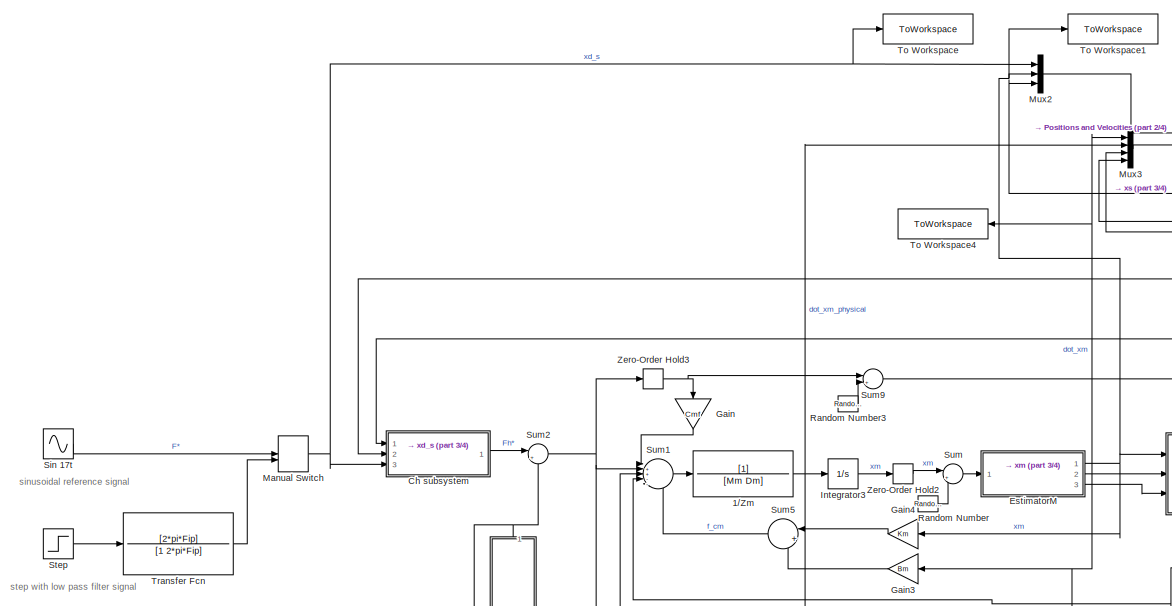
[diagram: root canvas - part 1/4, middle left region]
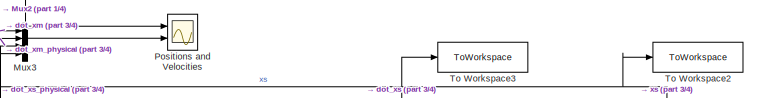
[diagram: root canvas - part 2/4, top center region]
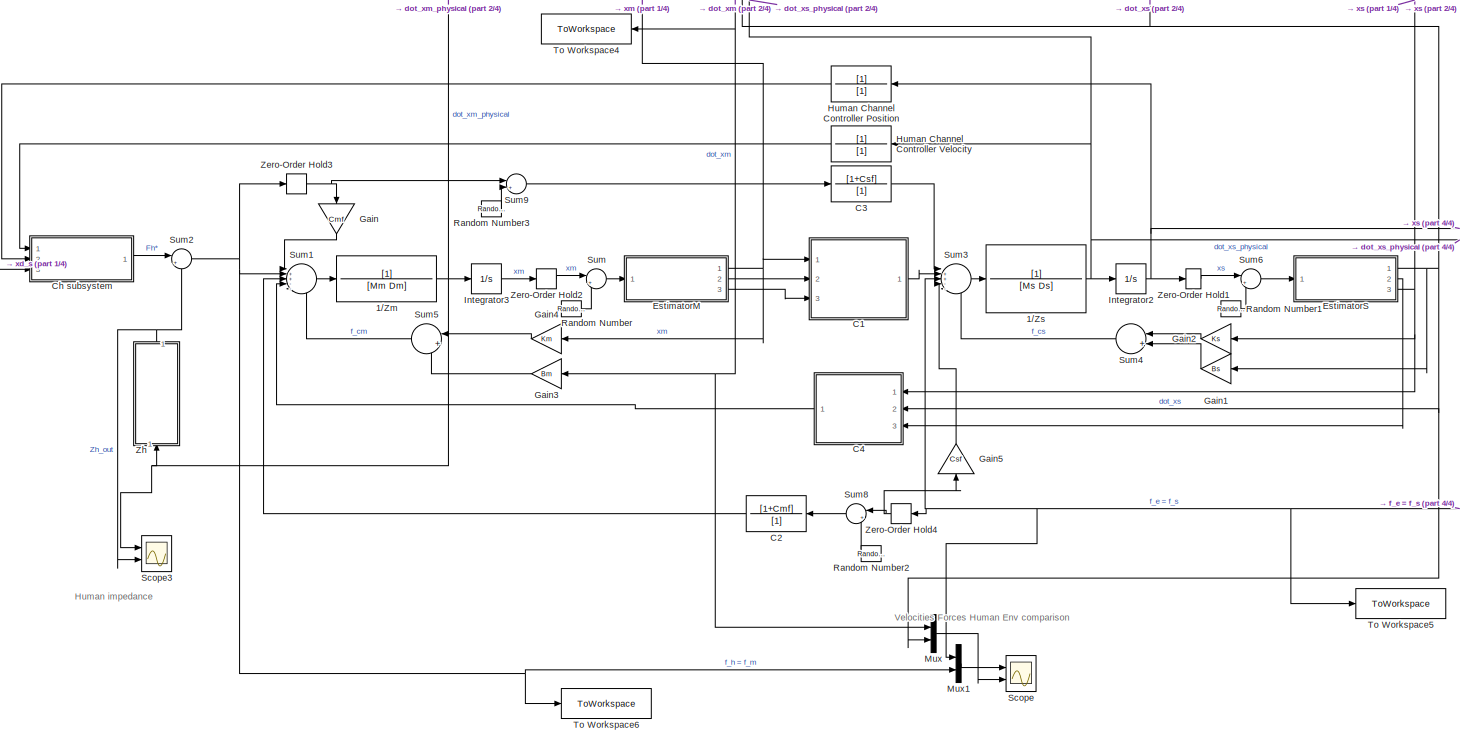
[diagram: root canvas - part 3/4, center side, full height]
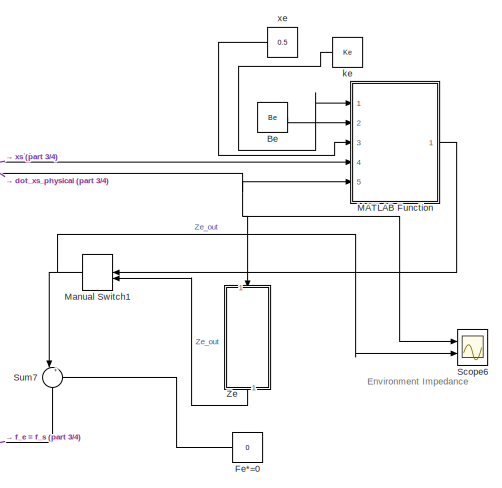
[diagram: root canvas - part 4/4, middle right region]
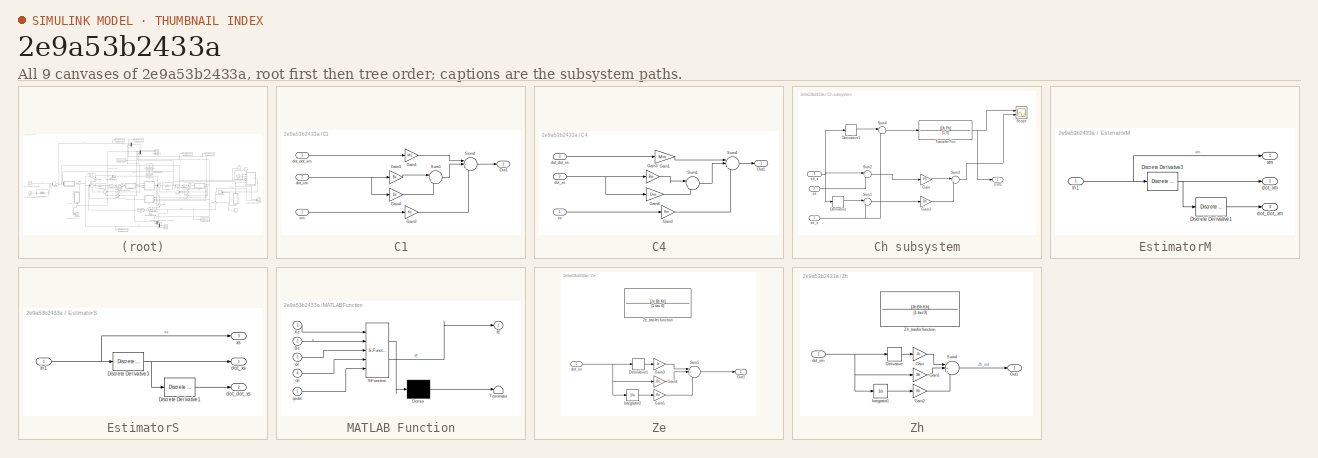
[diagram: thumbnail index - all 9 canvases of the model, root first then tree order]
MODEL slx_2e9a53b2433a
KIND model
CONFIG AbsTol = auto
CONFIG EnableMultiTasking = off
CONFIG FixedStep = auto
CONFIG MaxStep = auto
CONFIG MinStep = auto
CONFIG RelTol = 1e-3
CONFIG SampleTimeConstraint = Unconstrained
CONFIG SolverName = VariableStepAuto
CONFIG StartTime = 0.0
CONFIG StopTime = 10.0
BLOCK [TransferFcn] 1//Zm
  Denominator = [Mm Dm]
  NameLocation = top
BLOCK [TransferFcn] 1//Zs
  Denominator = [Ms Ds]
  NameLocation = top
BLOCK [Constant] Be
  NameLocation = top
  Value = Be
BLOCK [SubSystem] C1
  Ports = [3, 1]
  RequestExecContextInheritance = off
BLOCK [Gain] C1/Gain1
  Gain = Ms
BLOCK [Gain] C1/Gain2
  Gain = Ks
BLOCK [Gain] C1/Gain3
  Gain = Bs
BLOCK [Gain] C1/Gain4
  Gain = Ds
BLOCK [Outport] C1/Out1
BLOCK [Sum] C1/Sum1
  Inputs = |++
  Ports = [2, 1]
BLOCK [Sum] C1/Sum4
  Inputs = |+++
  Ports = [3, 1]
BLOCK [Inport] C1/dot_dot_xm
  Port = 3
BLOCK [Inport] C1/dot_xm
  Port = 2
BLOCK [Inport] C1/xm
BLOCK [TransferFcn] C2
  Denominator = [1]
  Numerator = [1+Cmf]
BLOCK [TransferFcn] C3
  Denominator = [1]
  NameLocation = top
  Numerator = [1+Csf]
BLOCK [SubSystem] C4
  NameLocation = top
  Ports = [3, 1]
  RequestExecContextInheritance = off
BLOCK [Gain] C4/Gain1
  Gain = Mm
BLOCK [Gain] C4/Gain2
  Gain = Km
BLOCK [Gain] C4/Gain3
  Gain = Bm
BLOCK [Gain] C4/Gain4
  Gain = Dm
BLOCK [Outport] C4/Out1
BLOCK [Sum] C4/Sum1
  Inputs = |++
  Ports = [2, 1]
BLOCK [Sum] C4/Sum4
  Inputs = |---
  Ports = [3, 1]
BLOCK [Inport] C4/dot_dot_xs
  Port = 3
BLOCK [Inport] C4/dot_xs
  Port = 2
BLOCK [Inport] C4/xs
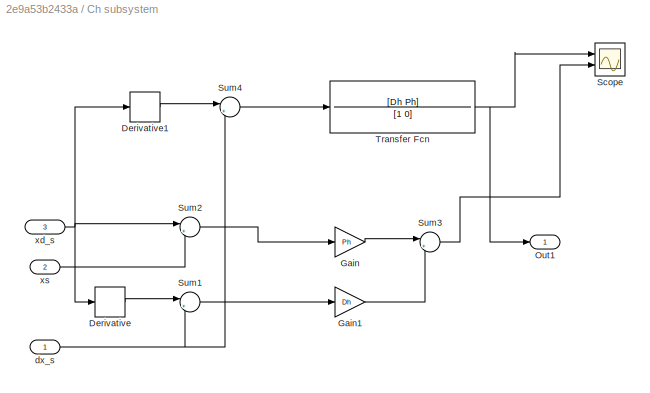
BLOCK [SubSystem] Ch subsystem
  Ports = [3, 1]
  RequestExecContextInheritance = off
BLOCK [Derivative] Ch subsystem/Derivative
BLOCK [Derivative] Ch subsystem/Derivative1
BLOCK [Gain] Ch subsystem/Gain
  Gain = Ph
BLOCK [Gain] Ch subsystem/Gain1
  Gain = Dh
BLOCK [Outport] Ch subsystem/Out1
BLOCK [Scope] Ch subsystem/Scope
  Floating = off
  NumInputPorts = 2
  Ports = [2]
  ScopeSpecificationString = Simulink.scopes.TimeScopeBlockCfg('CurrentConfiguration', extmgr.ConfigurationSet(extmgr.Configuration('Core','General UI',true),extmgr.Configuration('Core','Source UI',true),extmgr.Configuration('Sources','WiredSimulink',true,'DataLoggingVariableName','ScopeData1'),extmgr.Configuration('Visuals','Time Domain',true,'SerializedDisplays',{struct('MinYLimReal','-5963.77118','MaxYLimReal','5127.05271'...<+1485ch>
BLOCK [Sum] Ch subsystem/Sum1
  Inputs = |+-
  Ports = [2, 1]
BLOCK [Sum] Ch subsystem/Sum2
  Inputs = |+-
  Ports = [2, 1]
BLOCK [Sum] Ch subsystem/Sum3
  Inputs = |++
  Ports = [2, 1]
BLOCK [Sum] Ch subsystem/Sum4
  Inputs = |+-
  Ports = [2, 1]
BLOCK [TransferFcn] Ch subsystem/Transfer Fcn
  Denominator = [1 0]
  Numerator = [Dh Ph]
BLOCK [Inport] Ch subsystem/dx_s
BLOCK [Inport] Ch subsystem/xd_s
  Port = 3
BLOCK [Inport] Ch subsystem/xs
  Port = 2
BLOCK [SubSystem] EstimatorM
  Ports = [1, 3]
  RequestExecContextInheritance = off
BLOCK [Reference] EstimatorM/Discrete Derivative1  REF=simulink/Discrete/Discrete Derivative
  Ports = [1, 1]
  SourceBlock = simulink/Discrete/Discrete Derivative
  SourceProductBaseCode = SL
  SourceType = Discrete Derivative
BLOCK [Reference] EstimatorM/Discrete Derivative3  REF=simulink/Discrete/Discrete Derivative
  Ports = [1, 1]
  SourceBlock = simulink/Discrete/Discrete Derivative
  SourceProductBaseCode = SL
  SourceType = Discrete Derivative
BLOCK [Inport] EstimatorM/In1
BLOCK [Outport] EstimatorM/dot_dot_xm
  Port = 3
BLOCK [Outport] EstimatorM/dot_xm
  Port = 2
BLOCK [Outport] EstimatorM/xm
BLOCK [SubSystem] EstimatorS
  Ports = [1, 3]
  RequestExecContextInheritance = off
BLOCK [Reference] EstimatorS/Discrete Derivative1  REF=simulink/Discrete/Discrete Derivative
  Ports = [1, 1]
  SourceBlock = simulink/Discrete/Discrete Derivative
  SourceProductBaseCode = SL
  SourceType = Discrete Derivative
BLOCK [Reference] EstimatorS/Discrete Derivative3  REF=simulink/Discrete/Discrete Derivative
  Ports = [1, 1]
  SourceBlock = simulink/Discrete/Discrete Derivative
  SourceProductBaseCode = SL
  SourceType = Discrete Derivative
BLOCK [Inport] EstimatorS/In1
BLOCK [Outport] EstimatorS/dot_dot_xs
  Port = 2
BLOCK [Outport] EstimatorS/dot_xs
BLOCK [Outport] EstimatorS/xs
  Port = 3
BLOCK [Constant] Fe*=0
  Value = 0
BLOCK [Gain] Gain
  Gain = Cmf
  NameLocation = left
BLOCK [Gain] Gain1
  Gain = Bs
  NameLocation = top
BLOCK [Gain] Gain2
  Gain = Ks
  NameLocation = top
BLOCK [Gain] Gain3
  Gain = Bm
  NameLocation = top
BLOCK [Gain] Gain4
  Gain = Km
  NameLocation = top
BLOCK [Gain] Gain5
  Gain = Csf
  NameLocation = right
BLOCK [TransferFcn] Human Channel Controller Position
  Denominator = [1]
  NameLocation = top
BLOCK [TransferFcn] Human Channel Controller Velocity
  Denominator = [1]
  NameLocation = top
BLOCK [Integrator] Integrator2
  Ports = [1, 1]
BLOCK [Integrator] Integrator3
  Ports = [1, 1]
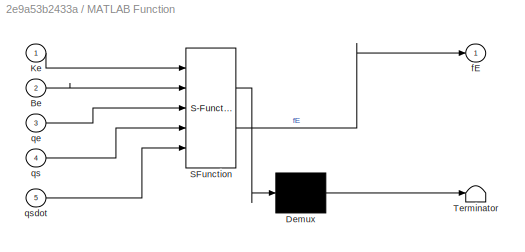
BLOCK [SubSystem] MATLAB Function
  ErrorFcn = Stateflow.Translate.translate
  PermitHierarchicalResolution = ExplicitOnly
  Ports = [5, 1]
  RequestExecContextInheritance = off
  SFBlockType = MATLAB Function
  TreatAsAtomicUnit = on
BLOCK [Demux] MATLAB Function/ Demux 
  Outputs = 1
  Ports = [1, 1]
BLOCK [S-Function] MATLAB Function/ SFunction 
  EnableBusSupport = on
  FunctionName = sf_sfun
  PortCounts = [5 2]
  Ports = [5, 2]
  SFcnIsStateOwnerBlock = off
  SFunctionDeploymentMode = off
  Tag = Stateflow S-Function 2
BLOCK [Terminator] MATLAB Function/ Terminator 
BLOCK [Inport] MATLAB Function/Be
  Port = 2
BLOCK [Inport] MATLAB Function/Ke
BLOCK [Outport] MATLAB Function/fE
BLOCK [Inport] MATLAB Function/qe
  Port = 3
BLOCK [Inport] MATLAB Function/qs
  Port = 4
BLOCK [Inport] MATLAB Function/qsdot
  Port = 5
BLOCK [ManualSwitch] Manual Switch
  CurrentSetting = 0
BLOCK [ManualSwitch] Manual Switch1
  NameLocation = top
BLOCK [Mux] Mux
  DisplayOption = bar
  Inputs = 2
  Ports = [2, 1]
BLOCK [Mux] Mux1
  DisplayOption = bar
  Inputs = 2
  Ports = [2, 1]
BLOCK [Mux] Mux2
  DisplayOption = bar
  Inputs = 3
  Ports = [3, 1]
BLOCK [Mux] Mux3
  DisplayOption = bar
  Ports = [4, 1]
BLOCK [Scope] Positions and Velocities
  Floating = off
  NumInputPorts = 2
  Ports = [2]
  ScopeSpecificationString = Simulink.scopes.TimeScopeBlockCfg('CurrentConfiguration', extmgr.ConfigurationSet(extmgr.Configuration('Core','General UI',true),extmgr.Configuration('Core','Source UI',true),extmgr.Configuration('Sources','WiredSimulink',true,'DataLoggingVariableName','ScopeData3'),extmgr.Configuration('Visuals','Time Domain',true,'SerializedDisplays',{struct('MinYLimReal','-1.25','MaxYLimReal','1.25','YLabelReal...<+2300ch>
BLOCK [RandomNumber] Random Number
  SampleTime = Ts
  Variance = VarianceVelocities
BLOCK [RandomNumber] Random Number1
  SampleTime = Ts
  Variance = VarianceVelocities
BLOCK [RandomNumber] Random Number2
  NameLocation = top
  SampleTime = Ts
  Variance = VarianceForces
BLOCK [RandomNumber] Random Number3
  SampleTime = Ts
  Variance = VarianceForces
BLOCK [Scope] Scope
  Floating = off
  NumInputPorts = 2
  Ports = [2]
  ScopeSpecificationString = Simulink.scopes.TimeScopeBlockCfg('CurrentConfiguration', extmgr.ConfigurationSet(extmgr.Configuration('Core','General UI',true),extmgr.Configuration('Core','Source UI',true),extmgr.Configuration('Sources','WiredSimulink',true),extmgr.Configuration('Visuals','Time Domain',true,'SerializedDisplays',{struct('MinYLimReal','-183.52028','MaxYLimReal','194.92314','YLabelReal','','MinYLimMag',' 0.00000',...<+2118ch>
BLOCK [Scope] Scope3
  Floating = off
  NumInputPorts = 2
  Ports = [2]
  ScopeSpecificationString = Simulink.scopes.TimeScopeBlockCfg('CurrentConfiguration', extmgr.ConfigurationSet(extmgr.Configuration('Core','General UI',true),extmgr.Configuration('Core','Source UI',true),extmgr.Configuration('Sources','WiredSimulink',true,'DataLoggingVariableName','ScopeData1'),extmgr.Configuration('Visuals','Time Domain',true,'SerializedDisplays',{struct('MinYLimReal','-7.66544','MaxYLimReal','10.37338','YLa...<+2118ch>
BLOCK [Scope] Scope6
  Floating = off
  NumInputPorts = 2
  Ports = [2]
  ScopeSpecificationString = Simulink.scopes.TimeScopeBlockCfg('CurrentConfiguration', extmgr.ConfigurationSet(extmgr.Configuration('Core','General UI',true),extmgr.Configuration('Core','Source UI',true),extmgr.Configuration('Sources','WiredSimulink',true,'DataLoggingVariableName','ScopeData2'),extmgr.Configuration('Visuals','Time Domain',true,'SerializedDisplays',{struct('MinYLimReal','-1.1305','MaxYLimReal','2.02022','YLabe...<+2126ch>
BLOCK [Sin] Sin 17t
  Amplitude = A
  Frequency = 2*pi*Fc
  Ports = [0, 1]
  SampleTime = 0
BLOCK [Step] Step
  After = A
  SampleTime = 0
BLOCK [Sum] Sum
  Inputs = |++
  Ports = [2, 1]
BLOCK [Sum] Sum1
  Inputs = |++---
  Ports = [5, 1]
BLOCK [Sum] Sum2
  Inputs = |+-
  Ports = [2, 1]
BLOCK [Sum] Sum3
  Inputs = |++---
  Ports = [5, 1]
BLOCK [Sum] Sum4
  Inputs = |++
  NameLocation = top
  Ports = [2, 1]
BLOCK [Sum] Sum5
  Inputs = |++
  NameLocation = top
  Ports = [2, 1]
BLOCK [Sum] Sum6
  Inputs = |++
  Ports = [2, 1]
BLOCK [Sum] Sum7
  Inputs = |++
  NameLocation = right
  Ports = [2, 1]
BLOCK [Sum] Sum8
  Inputs = |++
  NameLocation = top
  Ports = [2, 1]
BLOCK [Sum] Sum9
  Inputs = |++
  Ports = [2, 1]
BLOCK [ToWorkspace] To Workspace
  FixptAsFi = on
  MaxDataPoints = inf
  Ports = [1]
  SampleTime = -1
  SaveFormat = Timeseries
  VariableName = xd
BLOCK [ToWorkspace] To Workspace1
  FixptAsFi = on
  MaxDataPoints = inf
  Ports = [1]
  SampleTime = -1
  SaveFormat = Timeseries
  VariableName = xm
BLOCK [ToWorkspace] To Workspace2
  FixptAsFi = on
  MaxDataPoints = inf
  Ports = [1]
  SampleTime = -1
  SaveFormat = Timeseries
  VariableName = xs
BLOCK [ToWorkspace] To Workspace3
  FixptAsFi = on
  MaxDataPoints = inf
  Ports = [1]
  SampleTime = -1
  SaveFormat = Timeseries
  VariableName = dot_xs
BLOCK [ToWorkspace] To Workspace4
  FixptAsFi = on
  MaxDataPoints = inf
  NameLocation = top
  Ports = [1]
  SampleTime = -1
  SaveFormat = Timeseries
  VariableName = dot_xm
BLOCK [ToWorkspace] To Workspace5
  FixptAsFi = on
  MaxDataPoints = inf
  Ports = [1]
  SampleTime = -1
  SaveFormat = Timeseries
  VariableName = fe
BLOCK [ToWorkspace] To Workspace6
  FixptAsFi = on
  MaxDataPoints = inf
  Ports = [1]
  SampleTime = -1
  SaveFormat = Timeseries
  VariableName = fh
BLOCK [TransferFcn] Transfer Fcn
  Denominator = [1 2*pi*Fip]
  Numerator = [2*pi*Fip]
BLOCK [SubSystem] Ze
  NameLocation = left
  Ports = [1, 1]
  RequestExecContextInheritance = off
BLOCK [Derivative] Ze/Derivative1
BLOCK [Gain] Ze/Gain3
  Gain = Je
BLOCK [Gain] Ze/Gain4
  Gain = Be
BLOCK [Gain] Ze/Gain5
  Gain = Ke
BLOCK [Integrator] Ze/Integrator2
  Ports = [1, 1]
BLOCK [Outport] Ze/Out1
BLOCK [Sum] Ze/Sum5
  Inputs = |+++
  Ports = [3, 1]
BLOCK [TransferFcn] Ze/Ze_trasfer function
  Commented = on
  Denominator = [1 tau 0]
  NameLocation = right
  Numerator = [Je Be Ke]
BLOCK [Inport] Ze/dot_xs
BLOCK [ZeroOrderHold] Zero-Order Hold1
  SampleTime = Ts
BLOCK [ZeroOrderHold] Zero-Order Hold2
  SampleTime = Ts
BLOCK [ZeroOrderHold] Zero-Order Hold3
  SampleTime = Ts
BLOCK [ZeroOrderHold] Zero-Order Hold4
  SampleTime = Ts
BLOCK [SubSystem] Zh
  NameLocation = right
  Ports = [1, 1]
  RequestExecContextInheritance = off
BLOCK [Derivative] Zh/Derivative
BLOCK [Gain] Zh/Gain
  Gain = Jh
BLOCK [Gain] Zh/Gain1
  Gain = Bh
BLOCK [Gain] Zh/Gain2
  Gain = Kh
BLOCK [Integrator] Zh/Integrator1
  Ports = [1, 1]
BLOCK [Outport] Zh/Out1
BLOCK [Sum] Zh/Sum4
  Inputs = |+++
  Ports = [3, 1]
BLOCK [TransferFcn] Zh/Zh_trasfer function
  Commented = on
  Denominator = [1 tau 0]
  NameLocation = right
  Numerator = [Jh Bh Kh]
BLOCK [Inport] Zh/dot_xm
BLOCK [Constant] ke
  Value = Ke
BLOCK [Constant] xe
  Value = 0.5
ANNOTATION (root): sinusoidal reference signal
ANNOTATION (root): step with low pass filter signal
ANNOTATION (root): Environment Impedance
ANNOTATION (root): Human impedance
ANNOTATION (root): Velocities Forces Human Env comparison
NET 1//Zm:1 -> Integrator3:1, Mux3:2, Scope3:1, Zh:1
NET 1//Zs:1 -> Human Channel Controller Velocity:1, Integrator2:1, MATLAB Function:5, Mux3:3, Scope6:1, Ze:1
LINE Be:1 -> MATLAB Function:2
LINE C1/Gain1:1 -> C1/Sum4:1
LINE C1/Gain2:1 -> C1/Sum4:3
LINE C1/Gain3:1 -> C1/Sum1:1
LINE C1/Gain4:1 -> C1/Sum1:2
LINE C1/Sum1:1 -> C1/Sum4:2
LINE C1/Sum4:1 -> C1/Out1:1
LINE C1/dot_dot_xm:1 -> C1/Gain1:1
NET C1/dot_xm:1 -> C1/Gain3:1, C1/Gain4:1
LINE C1/xm:1 -> C1/Gain2:1
LINE C1:1 -> Sum3:2
LINE C2:1 -> Sum1:3
LINE C3:1 -> Sum3:1
LINE C4/Gain1:1 -> C4/Sum4:1
LINE C4/Gain2:1 -> C4/Sum4:3
LINE C4/Gain3:1 -> C4/Sum1:1
LINE C4/Gain4:1 -> C4/Sum1:2
LINE C4/Sum1:1 -> C4/Sum4:2
LINE C4/Sum4:1 -> C4/Out1:1
LINE C4/dot_dot_xs:1 -> C4/Gain1:1
NET C4/dot_xs:1 -> C4/Gain3:1, C4/Gain4:1
LINE C4/xs:1 -> C4/Gain2:1
LINE C4:1 -> Sum1:4
LINE Ch subsystem/Derivative1:1 -> Ch subsystem/Sum4:1
LINE Ch subsystem/Derivative:1 -> Ch subsystem/Sum1:1
LINE Ch subsystem/Gain1:1 -> Ch subsystem/Sum3:2
LINE Ch subsystem/Gain:1 -> Ch subsystem/Sum3:1
LINE Ch subsystem/Sum1:1 -> Ch subsystem/Gain1:1
LINE Ch subsystem/Sum2:1 -> Ch subsystem/Gain:1
LINE Ch subsystem/Sum3:1 -> Ch subsystem/Scope:2
LINE Ch subsystem/Sum4:1 -> Ch subsystem/Transfer Fcn:1
NET Ch subsystem/Transfer Fcn:1 -> Ch subsystem/Out1:1, Ch subsystem/Scope:1
NET Ch subsystem/dx_s:1 -> Ch subsystem/Sum1:2, Ch subsystem/Sum4:2
NET Ch subsystem/xd_s:1 -> Ch subsystem/Derivative1:1, Ch subsystem/Derivative:1, Ch subsystem/Sum2:1
LINE Ch subsystem/xs:1 -> Ch subsystem/Sum2:2
LINE Ch subsystem:1 -> Sum2:1
LINE EstimatorM/Discrete Derivative1:1 -> EstimatorM/dot_dot_xm:1
NET EstimatorM/Discrete Derivative3:1 -> EstimatorM/Discrete Derivative1:1, EstimatorM/dot_xm:1
NET EstimatorM/In1:1 -> EstimatorM/Discrete Derivative3:1, EstimatorM/xm:1
NET EstimatorM:1 -> C1:1, Gain4:1, Mux2:2, To Workspace1:1
NET EstimatorM:2 -> C1:2, Gain3:1, Mux3:1, Mux:1, To Workspace4:1
LINE EstimatorM:3 -> C1:3
LINE EstimatorS/Discrete Derivative1:1 -> EstimatorS/dot_dot_xs:1
NET EstimatorS/Discrete Derivative3:1 -> EstimatorS/Discrete Derivative1:1, EstimatorS/dot_xs:1
NET EstimatorS/In1:1 -> EstimatorS/Discrete Derivative3:1, EstimatorS/xs:1
NET EstimatorS:1 -> C4:2, Gain1:1, Mux3:4, Mux:2, To Workspace3:1
LINE EstimatorS:2 -> C4:3
NET EstimatorS:3 -> C4:1, Gain2:1, Mux2:3, To Workspace2:1
LINE Fe*=0:1 -> Sum7:2
LINE Gain1:1 -> Sum4:2
LINE Gain2:1 -> Sum4:1
LINE Gain3:1 -> Sum5:2
LINE Gain4:1 -> Sum5:1
LINE Gain5:1 -> Sum3:4
LINE Gain:1 -> Sum1:1
LINE Human Channel Controller Position:1 -> Ch subsystem:2
LINE Human Channel Controller Velocity:1 -> Ch subsystem:1
NET Integrator2:1 -> Human Channel Controller Position:1, MATLAB Function:4, Zero-Order Hold1:1
LINE Integrator3:1 -> Zero-Order Hold2:1
LINE MATLAB Function:1 -> Manual Switch1:1
NET Manual Switch1:1 -> Scope6:2, Sum7:1
NET Manual Switch:1 -> Ch subsystem:3, Mux2:1, To Workspace:1
LINE Mux1:1 -> Scope:1
LINE Mux2:1 -> Positions and Velocities:1
LINE Mux3:1 -> Positions and Velocities:2
LINE Mux:1 -> Scope:2
LINE Random Number1:1 -> Sum6:2
LINE Random Number2:1 -> Sum8:2
LINE Random Number3:1 -> Sum9:2
LINE Random Number:1 -> Sum:2
LINE Sin 17t:1 -> Manual Switch:1
LINE Step:1 -> Transfer Fcn:1
LINE Sum1:1 -> 1//Zm:1
NET Sum2:1 -> Mux1:2, Sum1:2, To Workspace6:1, Zero-Order Hold3:1
LINE Sum3:1 -> 1//Zs:1
LINE Sum4:1 -> Sum3:5
LINE Sum5:1 -> Sum1:5
LINE Sum6:1 -> EstimatorS:1
NET Sum7:1 -> Mux1:1, Sum3:3, To Workspace5:1, Zero-Order Hold4:1
LINE Sum8:1 -> C2:1
LINE Sum9:1 -> C3:1
LINE Sum:1 -> EstimatorM:1
LINE Transfer Fcn:1 -> Manual Switch:2
LINE Ze/Derivative1:1 -> Ze/Gain3:1
LINE Ze/Gain3:1 -> Ze/Sum5:1
LINE Ze/Gain4:1 -> Ze/Sum5:2
LINE Ze/Gain5:1 -> Ze/Sum5:3
LINE Ze/Integrator2:1 -> Ze/Gain5:1
LINE Ze/Sum5:1 -> Ze/Out1:1
NET Ze/dot_xs:1 -> Ze/Derivative1:1, Ze/Gain4:1, Ze/Integrator2:1
LINE Ze:1 -> Manual Switch1:2
LINE Zero-Order Hold1:1 -> Sum6:1
LINE Zero-Order Hold2:1 -> Sum:1
NET Zero-Order Hold3:1 -> Gain:1, Sum9:1
NET Zero-Order Hold4:1 -> Gain5:1, Sum8:1
LINE Zh/Derivative:1 -> Zh/Gain:1
LINE Zh/Gain1:1 -> Zh/Sum4:2
LINE Zh/Gain2:1 -> Zh/Sum4:3
LINE Zh/Gain:1 -> Zh/Sum4:1
LINE Zh/Integrator1:1 -> Zh/Gain2:1
LINE Zh/Sum4:1 -> Zh/Out1:1
NET Zh/dot_xm:1 -> Zh/Derivative:1, Zh/Gain1:1, Zh/Integrator1:1
NET Zh:1 -> Scope3:2, Sum2:2
LINE ke:1 -> MATLAB Function:1
LINE xe:1 -> MATLAB Function:3
note: NET lines group one-source signal fan-out (src -> all destinations, sorted); 1:1 wires keep LINE
CHART MATLAB Function states=1 transitions=1
  STATE_LABEL 'eML_blk_kernel()'
  STATE_LABEL 'SCRIPT:\nfunction fE = environment(Ke, Be, qe, qs, qsdot)\n    if qs > qe\n        fE = Ke * (qs - qe) + Be * qsdot; % Plot both contributions Ke and Be\n    else\n        fE = 0;\n    end\nend\n'
CHART  states=0 transitions=0
